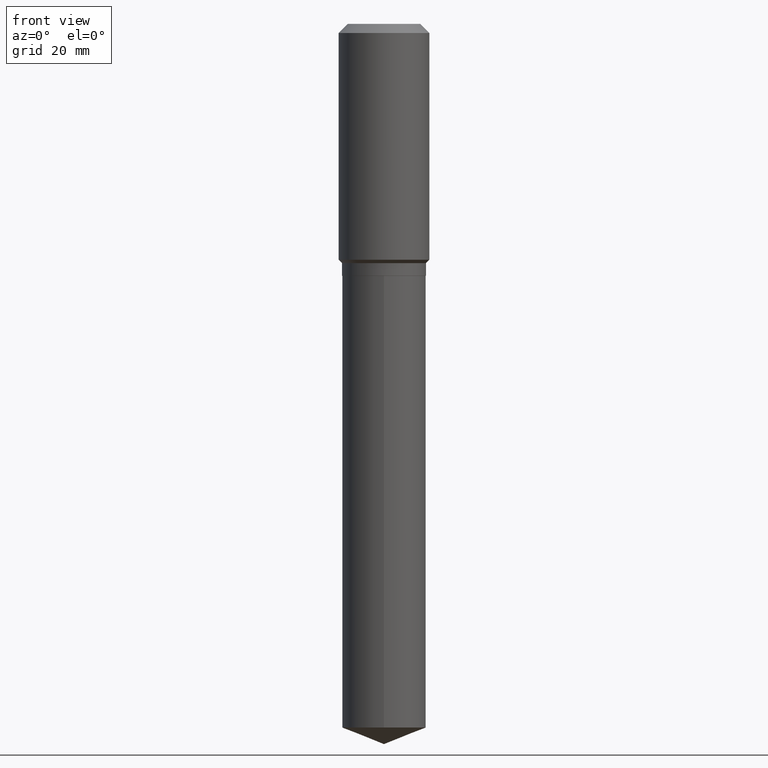
[diagram: clean part render]
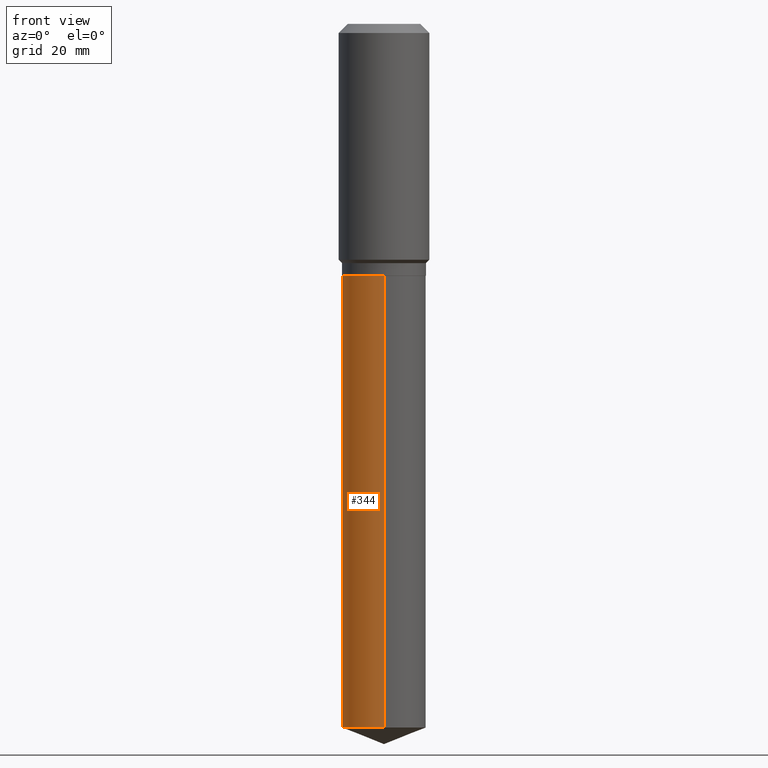
[diagram: same view with one face highlighted and labeled with its STEP entity id]
A machine part, front view. The second image highlights one B-rep face of the part: STEP entity #344.
In plain terms, the highlighted cylindrical surface (partial cylindrical patch) has radius 8.3337 mm, axis along (-0, 0, 1).
Its self-contained STEP definition (entity closure, byte-faithful):
#3 = DIRECTION ( 'NONE',  ( -6.982962677686265133E-15, -1.000000000000000000, 3.330506545156066257E-15 ) ) ;
#5 = VERTEX_POINT ( 'NONE', #241 ) ;
#16 = VECTOR ( 'NONE', #138, 39.37007874015748143 ) ;
#30 = EDGE_LOOP ( 'NONE', ( #227, #69, #383, #234 ) ) ;
#38 = CARTESIAN_POINT ( 'NONE',  ( 4.814149891856059498E-29, -6.873330163646616008E-15, -1.968599999999999905 ) ) ;
#44 = CARTESIAN_POINT ( 'NONE',  ( 2.331290716028936061E-15, 0.3280999999999930639, -1.968600000000001016 ) ) ;
#53 = CARTESIAN_POINT ( 'NONE',  ( 2.331290716029022836E-15, 0.3280999999999930639, -1.968600000000001016 ) ) ;
#59 = AXIS2_PLACEMENT_3D ( 'NONE', #38, #195, #3 ) ;
#69 = ORIENTED_EDGE ( 'NONE', *, *, #264, .T. ) ;
#80 = VERTEX_POINT ( 'NONE', #127 ) ;
#83 = DIRECTION ( 'NONE',  ( -2.445662151041925692E-29, 3.491204458003717662E-15, 1.000000000000000000 ) ) ;
#118 = DIRECTION ( 'NONE',  ( -6.982962677686265133E-15, -1.000000000000000000, 3.330506545156066257E-15 ) ) ;
#127 = CARTESIAN_POINT ( 'NONE',  ( -2.291110054548815599E-15, -0.3281000000000068861, -1.968599999999998795 ) ) ;
#132 = CYLINDRICAL_SURFACE ( 'NONE', #144, 0.3281000000000000028 ) ;
#138 = DIRECTION ( 'NONE',  ( -2.445662151041925692E-29, 3.491204458003717662E-15, 1.000000000000000000 ) ) ;
#144 = AXIS2_PLACEMENT_3D ( 'NONE', #233, #83, #460 ) ;
#150 = VECTOR ( 'NONE', #304, 39.37007874015748143 ) ;
#151 = VERTEX_POINT ( 'NONE', #188 ) ;
#183 = EDGE_CURVE ( 'NONE', #151, #80, #257, .T. ) ;
#188 = CARTESIAN_POINT ( 'NONE',  ( -2.291110054548728824E-15, -0.3281000000000190986, -5.500757972950736097 ) ) ;
#195 = DIRECTION ( 'NONE',  ( -2.445662151041925692E-29, 3.491204458003717662E-15, 1.000000000000000000 ) ) ;
#227 = ORIENTED_EDGE ( 'NONE', *, *, #277, .F. ) ;
#233 = CARTESIAN_POINT ( 'NONE',  ( 4.814149891856059498E-29, -6.873330163646616008E-15, -1.968599999999999905 ) ) ;
#234 = ORIENTED_EDGE ( 'NONE', *, *, #404, .F. ) ;
#241 = CARTESIAN_POINT ( 'NONE',  ( 2.331290716029022441E-15, 0.3280999999999807404, -5.500757972950738761 ) ) ;
#257 = LINE ( 'NONE', #473, #16 ) ;
#261 = CARTESIAN_POINT ( 'NONE',  ( 1.345261495780264828E-28, -1.920481582518560901E-14, -5.500757972950737873 ) ) ;
#264 = EDGE_CURVE ( 'NONE', #5, #151, #266, .T. ) ;
#266 = CIRCLE ( 'NONE', #323, 0.3281000000000000028 ) ;
#267 = LINE ( 'NONE', #44, #150 ) ;
#277 = EDGE_CURVE ( 'NONE', #5, #324, #267, .T. ) ;
#304 = DIRECTION ( 'NONE',  ( -2.445662151041925692E-29, 3.491204458003717662E-15, 1.000000000000000000 ) ) ;
#323 = AXIS2_PLACEMENT_3D ( 'NONE', #261, #353, #118 ) ;
#324 = VERTEX_POINT ( 'NONE', #53 ) ;
#337 = FACE_OUTER_BOUND ( 'NONE', #30, .T. ) ;
#344 = ADVANCED_FACE ( 'NONE', ( #337 ), #132, .T. ) ;
#353 = DIRECTION ( 'NONE',  ( -2.445662151041925692E-29, 3.491204458003717662E-15, 1.000000000000000000 ) ) ;
#383 = ORIENTED_EDGE ( 'NONE', *, *, #183, .T. ) ;
#404 = EDGE_CURVE ( 'NONE', #324, #80, #436, .T. ) ;
#436 = CIRCLE ( 'NONE', #59, 0.3281000000000000028 ) ;
#460 = DIRECTION ( 'NONE',  ( -6.982962677686265133E-15, -1.000000000000000000, 3.330506545156066257E-15 ) ) ;
#473 = CARTESIAN_POINT ( 'NONE',  ( -2.291110054548815599E-15, -0.3281000000000068861, -1.968599999999998795 ) ) ;